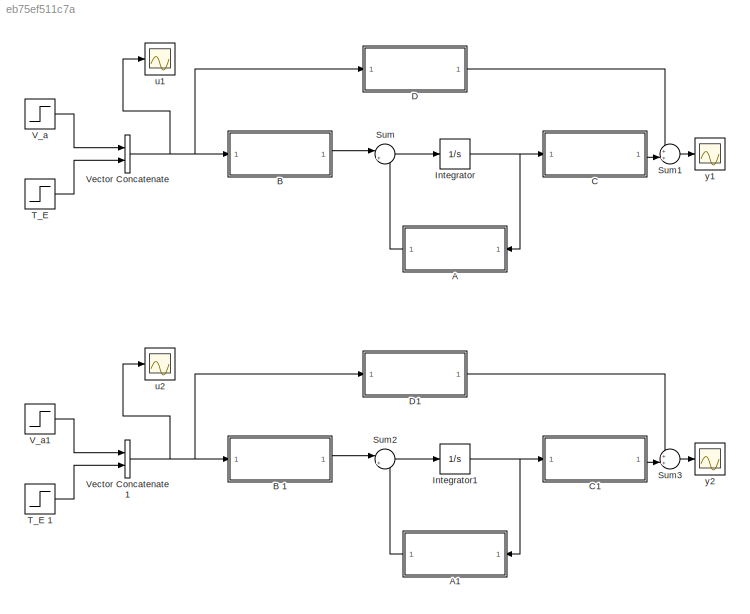
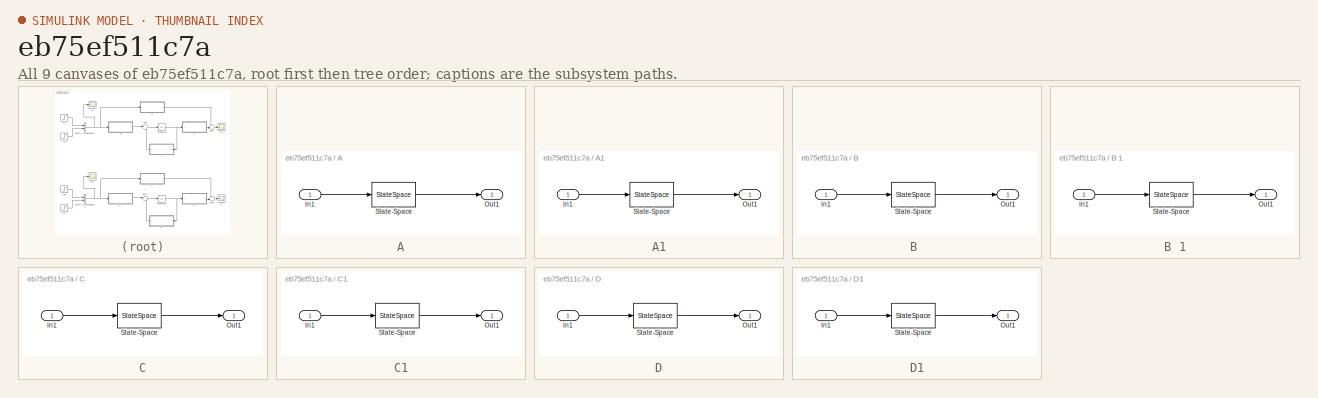
[diagram: thumbnail index - all 9 canvases of the model, root first then tree order]
MODEL slx_eb75ef511c7a
KIND model
CONFIG AbsTol = auto
CONFIG EnableMultiTasking = off
CONFIG FixedStep = auto
CONFIG MaxStep = auto
CONFIG MinStep = auto
CONFIG RelTol = 1e-3
CONFIG SampleTimeConstraint = Unconstrained
CONFIG Solver = VariableStepAuto
CONFIG SolverName = VariableStepAuto
CONFIG StartTime = 0.0
CONFIG StopTime = 0.1
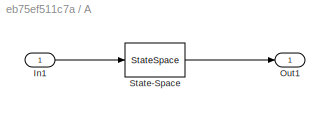
BLOCK [SubSystem] A
  Ports = [1, 1]
  RequestExecContextInheritance = off
BLOCK [Inport] A/In1
  IconDisplay = Port number
BLOCK [Outport] A/Out1
  IconDisplay = Port number
BLOCK [StateSpace] A/State-Space
  A = []
  B = []
  C = []
  D = A
  InitialCondition = 0
  Ports = [1, 1]
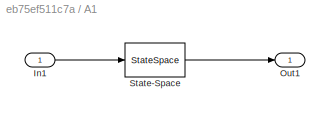
BLOCK [SubSystem] A1
  Ports = [1, 1]
  RequestExecContextInheritance = off
BLOCK [Inport] A1/In1
  IconDisplay = Port number
BLOCK [Outport] A1/Out1
  IconDisplay = Port number
BLOCK [StateSpace] A1/State-Space
  A = []
  B = []
  C = []
  D = A
  InitialCondition = 0
  Ports = [1, 1]
BLOCK [SubSystem] B 
  Ports = [1, 1]
  RequestExecContextInheritance = off
BLOCK [Inport] B /In1
  IconDisplay = Port number
BLOCK [Outport] B /Out1
  IconDisplay = Port number
BLOCK [StateSpace] B /State-Space
  A = []
  B = []
  C = []
  D = B
  InitialCondition = 0
  Ports = [1, 1]
BLOCK [SubSystem] B 1
  Ports = [1, 1]
  RequestExecContextInheritance = off
BLOCK [Inport] B 1/In1
  IconDisplay = Port number
BLOCK [Outport] B 1/Out1
  IconDisplay = Port number
BLOCK [StateSpace] B 1/State-Space
  A = []
  B = []
  C = []
  D = B
  InitialCondition = 0
  Ports = [1, 1]
BLOCK [SubSystem] C
  Ports = [1, 1]
  RequestExecContextInheritance = off
BLOCK [Inport] C/In1
  IconDisplay = Port number
BLOCK [Outport] C/Out1
  IconDisplay = Port number
BLOCK [StateSpace] C/State-Space
  A = []
  B = []
  C = []
  D = C_1
  InitialCondition = 0
  Ports = [1, 1]
BLOCK [SubSystem] C1
  Ports = [1, 1]
  RequestExecContextInheritance = off
BLOCK [Inport] C1/In1
  IconDisplay = Port number
BLOCK [Outport] C1/Out1
  IconDisplay = Port number
BLOCK [StateSpace] C1/State-Space
  A = []
  B = []
  C = []
  D = C_2
  InitialCondition = 0
  Ports = [1, 1]
BLOCK [SubSystem] D
  Ports = [1, 1]
  RequestExecContextInheritance = off
BLOCK [Inport] D/In1
  IconDisplay = Port number
BLOCK [Outport] D/Out1
  IconDisplay = Port number
BLOCK [StateSpace] D/State-Space
  A = []
  B = []
  C = []
  D = D_1
  InitialCondition = 0
  Ports = [1, 1]
BLOCK [SubSystem] D1
  Ports = [1, 1]
  RequestExecContextInheritance = off
BLOCK [Inport] D1/In1
  IconDisplay = Port number
BLOCK [Outport] D1/Out1
  IconDisplay = Port number
BLOCK [StateSpace] D1/State-Space
  A = []
  B = []
  C = []
  D = D_2
  InitialCondition = 0
  Ports = [1, 1]
BLOCK [Integrator] Integrator
  Ports = [1, 1]
BLOCK [Integrator] Integrator1
  Ports = [1, 1]
BLOCK [Sum] Sum
  IconShape = round
  InputSameDT = off
  Inputs = |++
  OutDataTypeStr = Inherit: Inherit via internal rule
  Ports = [2, 1]
  SaturateOnIntegerOverflow = off
BLOCK [Sum] Sum1
  IconShape = round
  InputSameDT = off
  Inputs = ++|
  OutDataTypeStr = Inherit: Inherit via internal rule
  Ports = [2, 1]
  SaturateOnIntegerOverflow = off
BLOCK [Sum] Sum2
  IconShape = round
  InputSameDT = off
  Inputs = |++
  OutDataTypeStr = Inherit: Inherit via internal rule
  Ports = [2, 1]
  SaturateOnIntegerOverflow = off
BLOCK [Sum] Sum3
  IconShape = round
  InputSameDT = off
  Inputs = ++|
  OutDataTypeStr = Inherit: Inherit via internal rule
  Ports = [2, 1]
  SaturateOnIntegerOverflow = off
BLOCK [Step] T_E 
  After = -0.1
  SampleTime = 0
  Time = 5/100
BLOCK [Step] T_E 1
  After = -0.1
  SampleTime = 0
  Time = 5/100
BLOCK [Step] V_a
  After = 10
  SampleTime = 0
  Time = 2/100
BLOCK [Step] V_a1
  After = 10
  SampleTime = 0
  Time = 2/100
BLOCK [Concatenate] Vector Concatenate
  Ports = [2, 1]
BLOCK [Concatenate] Vector Concatenate1
  Ports = [2, 1]
BLOCK [Scope] u1 
  Floating = off
  NumInputPorts = 1
  Ports = [1]
  ScopeSpecificationString = Simulink.scopes.TimeScopeBlockCfg('CurrentConfiguration', extmgr.ConfigurationSet(extmgr.Configuration('Core','General UI',true),extmgr.Configuration('Core','Source UI',true),extmgr.Configuration('Sources','WiredSimulink',true,'DataLoggingVariableName','ScopeData1'),extmgr.Configuration('Visuals','Time Domain',true,'SerializedDisplays',{struct('MinYLimReal','-1.3625','MaxYLimReal','11.2625','YLabe...<+1394ch>
BLOCK [Scope] u2 
  Floating = off
  NumInputPorts = 1
  Ports = [1]
  ScopeSpecificationString = Simulink.scopes.TimeScopeBlockCfg('CurrentConfiguration', extmgr.ConfigurationSet(extmgr.Configuration('Core','General UI',true),extmgr.Configuration('Core','Source UI',true),extmgr.Configuration('Sources','WiredSimulink',true,'DataLoggingVariableName','ScopeData1'),extmgr.Configuration('Visuals','Time Domain',true,'SerializedDisplays',{struct('MinYLimReal','-1.3625','MaxYLimReal','11.2625','YLabe...<+1396ch>
BLOCK [Scope] y1 
  Floating = off
  NumInputPorts = 1
  Ports = [1]
  ScopeSpecificationString = Simulink.scopes.TimeScopeBlockCfg('CurrentConfiguration', extmgr.ConfigurationSet(extmgr.Configuration('Core','General UI',true),extmgr.Configuration('Core','Source UI',true),extmgr.Configuration('Sources','WiredSimulink',true),extmgr.Configuration('Visuals','Time Domain',true,'SerializedDisplays',{struct('MinYLimReal','-10.41422','MaxYLimReal','93.72797','YLabelReal','','MinYLimMag','0.00000','Ma...<+1413ch>
BLOCK [Scope] y2 
  Floating = off
  NumInputPorts = 1
  Ports = [1]
  ScopeSpecificationString = Simulink.scopes.TimeScopeBlockCfg('CurrentConfiguration', extmgr.ConfigurationSet(extmgr.Configuration('Core','General UI',true),extmgr.Configuration('Core','Source UI',true),extmgr.Configuration('Sources','WiredSimulink',true,'DataLoggingVariableName','ScopeData2'),extmgr.Configuration('Visuals','Time Domain',true,'SerializedDisplays',{struct('MinYLimReal','-10.41237','MaxYLimReal','93.71132','YL...<+1454ch>
LINE A/In1:1 -> A/State-Space:1
LINE A/State-Space:1 -> A/Out1:1
LINE A1/In1:1 -> A1/State-Space:1
LINE A1/State-Space:1 -> A1/Out1:1
LINE A1:1 -> Sum2:2
LINE A:1 -> Sum:2
LINE B /In1:1 -> B /State-Space:1
LINE B /State-Space:1 -> B /Out1:1
LINE B 1/In1:1 -> B 1/State-Space:1
LINE B 1/State-Space:1 -> B 1/Out1:1
LINE B 1:1 -> Sum2:1
LINE B :1 -> Sum:1
LINE C/In1:1 -> C/State-Space:1
LINE C/State-Space:1 -> C/Out1:1
LINE C1/In1:1 -> C1/State-Space:1
LINE C1/State-Space:1 -> C1/Out1:1
LINE C1:1 -> Sum3:2
LINE C:1 -> Sum1:2
LINE D/In1:1 -> D/State-Space:1
LINE D/State-Space:1 -> D/Out1:1
LINE D1/In1:1 -> D1/State-Space:1
LINE D1/State-Space:1 -> D1/Out1:1
LINE D1:1 -> Sum3:1
LINE D:1 -> Sum1:1
NET Integrator1:1 -> A1:1, C1:1
NET Integrator:1 -> A:1, C:1
LINE Sum1:1 -> y1 :1
LINE Sum2:1 -> Integrator1:1
LINE Sum3:1 -> y2 :1
LINE Sum:1 -> Integrator:1
LINE T_E 1:1 -> Vector Concatenate1:2
LINE T_E :1 -> Vector Concatenate:2
LINE V_a1:1 -> Vector Concatenate1:1
LINE V_a:1 -> Vector Concatenate:1
NET Vector Concatenate1:1 -> B 1:1, D1:1, u2 :1
NET Vector Concatenate:1 -> B :1, D:1, u1 :1
note: NET lines group one-source signal fan-out (src -> all destinations, sorted); 1:1 wires keep LINE
